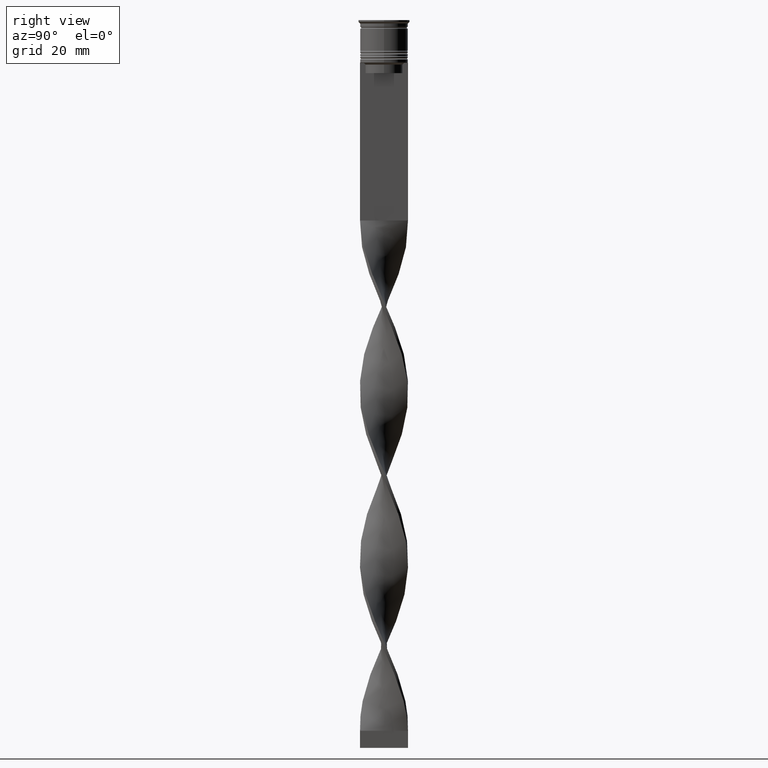
[diagram: clean part render]
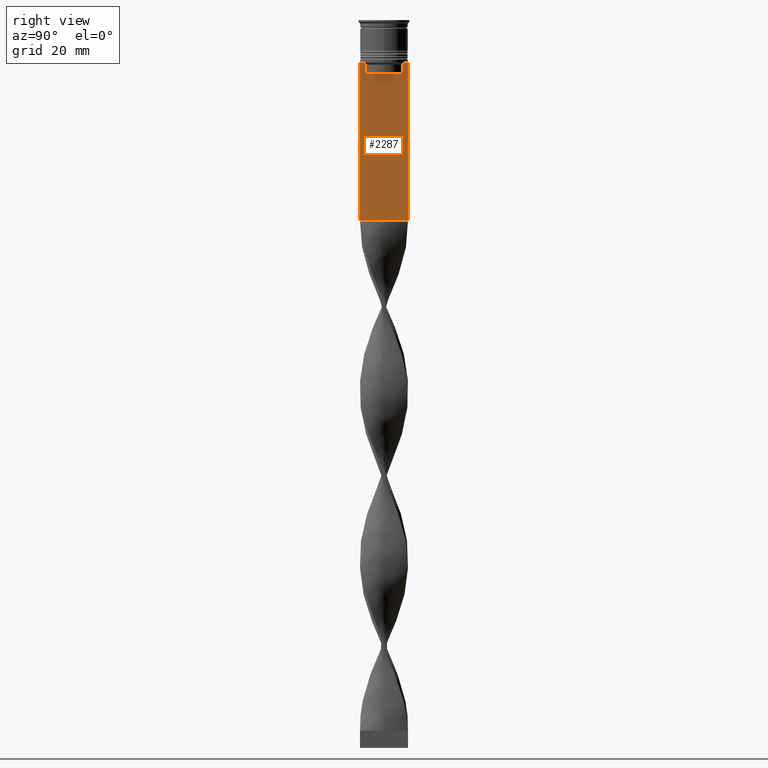
[diagram: same view with one face highlighted and labeled with its STEP entity id]
A machine part, right view. The second image highlights one B-rep face of the part: STEP entity #2287.
In plain terms, the highlighted planar face has unit normal (-1, 0, 0).
Its self-contained STEP definition (entity closure, byte-faithful):
#4 = CARTESIAN_POINT ( 'NONE',  ( 0.5000000000000000000, -6.999999999999997335, -58.50000000000000000 ) ) ;
#21 = CARTESIAN_POINT ( 'NONE',  ( 0.5000000000000000000, -5.376802023508029826, 0.000000000000000000 ) ) ;
#25 = CARTESIAN_POINT ( 'NONE',  ( 0.5000000000000000000, 5.400000000000003908, -15.50000000000000000 ) ) ;
#53 = PLANE ( 'NONE',  #2205 ) ;
#72 = CARTESIAN_POINT ( 'NONE',  ( 0.5000000000000000000, 5.376802023508029826, 0.000000000000000000 ) ) ;
#129 = CARTESIAN_POINT ( 'NONE',  ( 0.5000000000000000000, 5.878775382679629402, -12.50000000000000000 ) ) ;
#150 = EDGE_CURVE ( 'NONE', #3831, #3371, #1519, .T. ) ;
#170 = CARTESIAN_POINT ( 'NONE',  ( 0.5000000000000000000, 7.000000000000002665, 1.535668847618198329 ) ) ;
#271 = CARTESIAN_POINT ( 'NONE',  ( 0.5000000000000000000, 6.881860213634102053, -12.50000000000000000 ) ) ;
#279 = DIRECTION ( 'NONE',  ( -0.000000000000000000, -0.000000000000000000, 1.000000000000000000 ) ) ;
#359 = ORIENTED_EDGE ( 'NONE', *, *, #2222, .T. ) ;
#364 = DIRECTION ( 'NONE',  ( 0.000000000000000000, -1.000000000000000000, 0.000000000000000000 ) ) ;
#580 = B_SPLINE_CURVE_WITH_KNOTS ( 'NONE', 3,
 ( #772, #2880, #1374, #2922 ),
 .UNSPECIFIED., .F., .F.,
 ( 4, 4 ),
 ( 0.02539176325380714666, 0.02610162431828674801 ),
 .UNSPECIFIED. ) ;
#581 = CARTESIAN_POINT ( 'NONE',  ( 0.5000000000000000000, -6.999999999999997335, -12.50000000000000000 ) ) ;
#615 = EDGE_CURVE ( 'NONE', #3371, #2427, #2116, .T. ) ;
#623 = EDGE_CURVE ( 'NONE', #1136, #3286, #1509, .T. ) ;
#635 = LINE ( 'NONE', #4, #3337 ) ;
#640 = VECTOR ( 'NONE', #1832, 1000.000000000000000 ) ;
#726 = CARTESIAN_POINT ( 'NONE',  ( 0.5000000000000000000, 7.000000000000002665, -58.50000000000000000 ) ) ;
#763 = CARTESIAN_POINT ( 'NONE',  ( 0.5000000000000000000, -6.881860213634102053, -12.50000000000000000 ) ) ;
#772 = CARTESIAN_POINT ( 'NONE',  ( 0.5000000000000000000, -5.376802023508029826, -13.00000000000000178 ) ) ;
#827 = VECTOR ( 'NONE', #3617, 1000.000000000000000 ) ;
#871 = CARTESIAN_POINT ( 'NONE',  ( 0.5000000000000000000, 5.376802023508029826, -15.50000000000000000 ) ) ;
#882 = VECTOR ( 'NONE', #1266, 1000.000000000000000 ) ;
#895 = FACE_OUTER_BOUND ( 'NONE', #3616, .T. ) ;
#906 = ORIENTED_EDGE ( 'NONE', *, *, #2053, .T. ) ;
#1037 = CARTESIAN_POINT ( 'NONE',  ( 0.5000000000000000000, 5.878775382679629402, -12.50000000000000000 ) ) ;
#1049 = CARTESIAN_POINT ( 'NONE',  ( 0.5000000000000000000, 5.376802023508029826, -13.00000000000000178 ) ) ;
#1057 = CARTESIAN_POINT ( 'NONE',  ( 0.5000000000000000000, 5.711478846560141598, -12.66669470477064685 ) ) ;
#1136 = VERTEX_POINT ( 'NONE', #2141 ) ;
#1266 = DIRECTION ( 'NONE',  ( 0.000000000000000000, -1.000000000000000000, 0.000000000000000000 ) ) ;
#1374 = CARTESIAN_POINT ( 'NONE',  ( 0.5000000000000000000, -5.711478856069293286, -12.66669469529570335 ) ) ;
#1386 = ORIENTED_EDGE ( 'NONE', *, *, #615, .T. ) ;
#1411 = VECTOR ( 'NONE', #279, 1000.000000000000000 ) ;
#1473 = EDGE_CURVE ( 'NONE', #3182, #3361, #3268, .T. ) ;
#1494 = LINE ( 'NONE', #3289, #882 ) ;
#1505 = CARTESIAN_POINT ( 'NONE',  ( 0.5000000000000000000, 7.000000000000002665, -12.50000000000000000 ) ) ;
#1509 = LINE ( 'NONE', #2413, #3037 ) ;
#1519 = LINE ( 'NONE', #72, #2003 ) ;
#1646 = VECTOR ( 'NONE', #1780, 1000.000000000000000 ) ;
#1717 = LINE ( 'NONE', #170, #3022 ) ;
#1718 = CARTESIAN_POINT ( 'NONE',  ( 0.5000000000000000000, 5.376802023508029826, -13.00000000000000178 ) ) ;
#1725 = EDGE_CURVE ( 'NONE', #3182, #2248, #1717, .T. ) ;
#1780 = DIRECTION ( 'NONE',  ( 0.000000000000000000, -1.000000000000000000, 0.000000000000000000 ) ) ;
#1782 = DIRECTION ( 'NONE',  ( 0.000000000000000000, 0.000000000000000000, -1.000000000000000000 ) ) ;
#1832 = DIRECTION ( 'NONE',  ( 0.000000000000000000, -1.000000000000000000, 0.000000000000000000 ) ) ;
#1969 = EDGE_CURVE ( 'NONE', #2947, #1136, #2437, .T. ) ;
#2002 = EDGE_CURVE ( 'NONE', #3361, #2392, #1494, .T. ) ;
#2003 = VECTOR ( 'NONE', #1782, 1000.000000000000000 ) ;
#2017 = VERTEX_POINT ( 'NONE', #3613 ) ;
#2053 = EDGE_CURVE ( 'NONE', #3286, #2248, #635, .T. ) ;
#2088 = ORIENTED_EDGE ( 'NONE', *, *, #2002, .T. ) ;
#2116 = LINE ( 'NONE', #25, #2727 ) ;
#2141 = CARTESIAN_POINT ( 'NONE',  ( 0.5000000000000000000, -6.999999999999997335, -12.50000000000000000 ) ) ;
#2202 = EDGE_CURVE ( 'NONE', #2392, #3831, #2689, .T. ) ;
#2205 = AXIS2_PLACEMENT_3D ( 'NONE', #3594, #3127, #3430 ) ;
#2222 = EDGE_CURVE ( 'NONE', #2017, #3857, #580, .T. ) ;
#2224 = ORIENTED_EDGE ( 'NONE', *, *, #2202, .T. ) ;
#2248 = VERTEX_POINT ( 'NONE', #726 ) ;
#2287 = ADVANCED_FACE ( 'NONE', ( #895 ), #53, .F. ) ;
#2384 = LINE ( 'NONE', #2622, #827 ) ;
#2392 = VERTEX_POINT ( 'NONE', #129 ) ;
#2413 = CARTESIAN_POINT ( 'NONE',  ( 0.5000000000000000000, -6.999999999999997335, 1.535668847618198329 ) ) ;
#2427 = VERTEX_POINT ( 'NONE', #2525 ) ;
#2437 = LINE ( 'NONE', #2759, #640 ) ;
#2525 = CARTESIAN_POINT ( 'NONE',  ( 0.5000000000000000000, -5.376802023508029826, -15.50000000000000000 ) ) ;
#2586 = CARTESIAN_POINT ( 'NONE',  ( 0.5000000000000000000, -6.999999999999997335, -58.50000000000000000 ) ) ;
#2622 = CARTESIAN_POINT ( 'NONE',  ( 0.5000000000000000000, -6.999999999999997335, -12.50000000000000000 ) ) ;
#2689 = B_SPLINE_CURVE_WITH_KNOTS ( 'NONE', 3,
 ( #1037, #1057, #3471, #1718 ),
 .UNSPECIFIED., .F., .F.,
 ( 4, 4 ),
 ( 0.01003009312103698807, 0.01073859663834952557 ),
 .UNSPECIFIED. ) ;
#2695 = DIRECTION ( 'NONE',  ( 0.000000000000000000, 0.000000000000000000, -1.000000000000000000 ) ) ;
#2727 = VECTOR ( 'NONE', #364, 1000.000000000000000 ) ;
#2759 = CARTESIAN_POINT ( 'NONE',  ( 0.5000000000000000000, -6.999999999999997335, -12.50000000000000000 ) ) ;
#2779 = ORIENTED_EDGE ( 'NONE', *, *, #1725, .F. ) ;
#2823 = DIRECTION ( 'NONE',  ( 0.000000000000000000, 1.000000000000000000, 0.000000000000000000 ) ) ;
#2880 = CARTESIAN_POINT ( 'NONE',  ( 0.5000000000000000000, -5.544156999454441959, -12.83336396790503642 ) ) ;
#2922 = CARTESIAN_POINT ( 'NONE',  ( 0.5000000000000000000, -5.878775382679629402, -12.50000000000000000 ) ) ;
#2934 = ORIENTED_EDGE ( 'NONE', *, *, #3359, .T. ) ;
#2936 = DIRECTION ( 'NONE',  ( 0.000000000000000000, 0.000000000000000000, -1.000000000000000000 ) ) ;
#2947 = VERTEX_POINT ( 'NONE', #763 ) ;
#2968 = LINE ( 'NONE', #21, #1411 ) ;
#3022 = VECTOR ( 'NONE', #2936, 1000.000000000000000 ) ;
#3026 = ORIENTED_EDGE ( 'NONE', *, *, #1473, .T. ) ;
#3037 = VECTOR ( 'NONE', #2695, 1000.000000000000000 ) ;
#3127 = DIRECTION ( 'NONE',  ( -1.000000000000000000, 0.000000000000000000, 0.000000000000000000 ) ) ;
#3135 = CARTESIAN_POINT ( 'NONE',  ( 0.5000000000000000000, -5.878775382679629402, -12.50000000000000000 ) ) ;
#3182 = VERTEX_POINT ( 'NONE', #1505 ) ;
#3200 = ORIENTED_EDGE ( 'NONE', *, *, #623, .T. ) ;
#3268 = LINE ( 'NONE', #581, #1646 ) ;
#3286 = VERTEX_POINT ( 'NONE', #2586 ) ;
#3289 = CARTESIAN_POINT ( 'NONE',  ( 0.5000000000000000000, -6.999999999999997335, -12.50000000000000000 ) ) ;
#3337 = VECTOR ( 'NONE', #2823, 1000.000000000000000 ) ;
#3359 = EDGE_CURVE ( 'NONE', #3857, #2947, #2384, .T. ) ;
#3361 = VERTEX_POINT ( 'NONE', #271 ) ;
#3371 = VERTEX_POINT ( 'NONE', #871 ) ;
#3430 = DIRECTION ( 'NONE',  ( 0.000000000000000000, 0.000000000000000000, 1.000000000000000000 ) ) ;
#3462 = EDGE_CURVE ( 'NONE', #2427, #2017, #2968, .T. ) ;
#3471 = CARTESIAN_POINT ( 'NONE',  ( 0.5000000000000000000, 5.544156989057553275, -12.83336397825725861 ) ) ;
#3530 = ORIENTED_EDGE ( 'NONE', *, *, #3462, .T. ) ;
#3594 = CARTESIAN_POINT ( 'NONE',  ( 0.5000000000000000000, -6.999999999999997335, 1.535668847618198329 ) ) ;
#3613 = CARTESIAN_POINT ( 'NONE',  ( 0.5000000000000000000, -5.376802023508029826, -13.00000000000000178 ) ) ;
#3616 = EDGE_LOOP ( 'NONE', ( #2088, #2224, #3816, #1386, #3530, #359, #2934, #3780, #3200, #906, #2779, #3026 ) ) ;
#3617 = DIRECTION ( 'NONE',  ( 0.000000000000000000, -1.000000000000000000, 0.000000000000000000 ) ) ;
#3780 = ORIENTED_EDGE ( 'NONE', *, *, #1969, .T. ) ;
#3816 = ORIENTED_EDGE ( 'NONE', *, *, #150, .T. ) ;
#3831 = VERTEX_POINT ( 'NONE', #1049 ) ;
#3857 = VERTEX_POINT ( 'NONE', #3135 ) ;